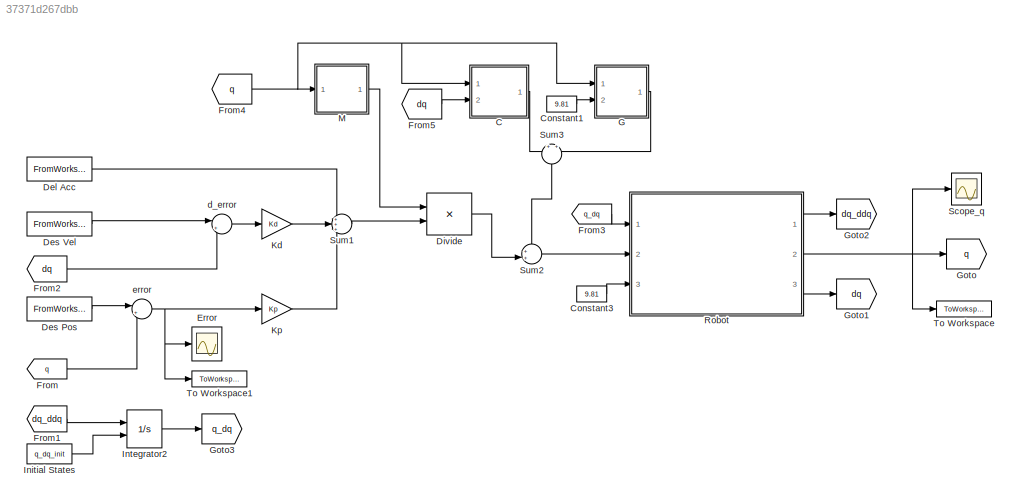
MODEL slx_37371d267dbb
KIND model
CONFIG AbsTol = auto
CONFIG EnableMultiTasking = off
CONFIG FixedStep = auto
CONFIG MaxStep = auto
CONFIG MinStep = auto
CONFIG RelTol = 1e-3
CONFIG SampleTimeConstraint = Unconstrained
CONFIG SolverName = VariableStepAuto
CONFIG StartTime = 0.0
CONFIG StopTime = 10.0
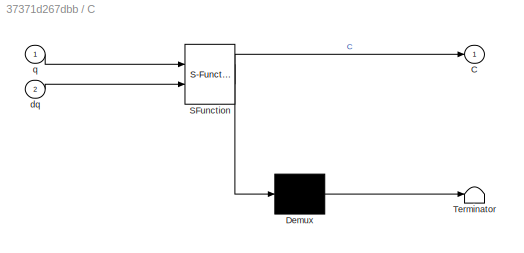
BLOCK [SubSystem] C
  ErrorFcn = Stateflow.Translate.translate
  PermitHierarchicalResolution = ExplicitOnly
  Ports = [2, 1]
  RequestExecContextInheritance = off
  SFBlockType = MATLAB Function
  TreatAsAtomicUnit = on
BLOCK [Demux] C/ Demux 
  Outputs = 1
  Ports = [1, 1]
BLOCK [S-Function] C/ SFunction 
  EnableBusSupport = on
  FunctionName = sf_sfun
  PortCounts = [2 2]
  Ports = [2, 2]
  SFcnIsStateOwnerBlock = off
  SFunctionDeploymentMode = off
  Tag = Stateflow S-Function 3
BLOCK [Terminator] C/ Terminator 
BLOCK [Outport] C/C
BLOCK [Inport] C/dq
  Port = 2
BLOCK [Inport] C/q
BLOCK [Constant] Constant1
  Value = 9.81
BLOCK [Constant] Constant3
  Value = 9.81
BLOCK [FromWorkspace] Del Acc
  VariableName = ddq_des
BLOCK [FromWorkspace] Des Pos
  VariableName = q_des
BLOCK [FromWorkspace] Des Vel
  VariableName = dq_des
BLOCK [Product] Divide
  Inputs = **
  Multiplication = Matrix(*)
  Ports = [2, 1]
BLOCK [Scope] Error
  Floating = off
  NumInputPorts = 1
  Ports = [1]
  ScopeSpecificationString = Simulink.scopes.TimeScopeBlockCfg('CurrentConfiguration', extmgr.ConfigurationSet(extmgr.Configuration('Core','General UI',true,'FigureColor',[1 1 1]),extmgr.Configuration('Core','Source UI',true),extmgr.Configuration('Sources','WiredSimulink',true,'DataLoggingVariableName','ScopeData2'),extmgr.Configuration('Visuals','Time Domain',true,'SerializedDisplays',{struct('MinYLimReal','-0.06746','MaxYLi...<+1790ch>
BLOCK [From] From
  GotoTag = q
BLOCK [From] From1
  GotoTag = dq_ddq
BLOCK [From] From2
  GotoTag = dq
BLOCK [From] From3
  GotoTag = q_dq
BLOCK [From] From4
  GotoTag = q
BLOCK [From] From5
  GotoTag = dq
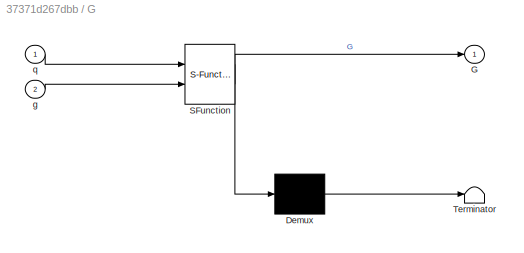
BLOCK [SubSystem] G
  ErrorFcn = Stateflow.Translate.translate
  PermitHierarchicalResolution = ExplicitOnly
  Ports = [2, 1]
  RequestExecContextInheritance = off
  SFBlockType = MATLAB Function
  TreatAsAtomicUnit = on
BLOCK [Demux] G/ Demux 
  Outputs = 1
  Ports = [1, 1]
BLOCK [S-Function] G/ SFunction 
  EnableBusSupport = on
  FunctionName = sf_sfun
  PortCounts = [2 2]
  Ports = [2, 2]
  SFcnIsStateOwnerBlock = off
  SFunctionDeploymentMode = off
  Tag = Stateflow S-Function 4
BLOCK [Terminator] G/ Terminator 
BLOCK [Outport] G/G
BLOCK [Inport] G/g
  Port = 2
BLOCK [Inport] G/q
BLOCK [Goto] Goto
  GotoTag = q
BLOCK [Goto] Goto1
  GotoTag = dq
BLOCK [Goto] Goto2
  GotoTag = dq_ddq
BLOCK [Goto] Goto3
  GotoTag = q_dq
BLOCK [Constant] Initial States
  Value = q_dq_init
BLOCK [Integrator] Integrator2
  InitialConditionSource = external
  Ports = [2, 1]
BLOCK [Gain] Kd
  Gain = Kd
  Multiplication = Matrix(K*u)
BLOCK [Gain] Kp
  Gain = Kp
  Multiplication = Matrix(K*u)
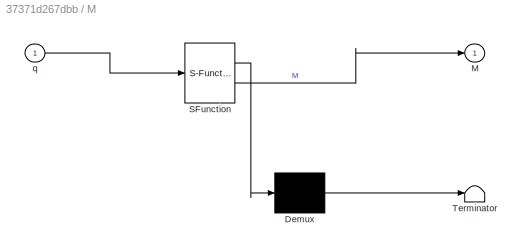
BLOCK [SubSystem] M
  ErrorFcn = Stateflow.Translate.translate
  PermitHierarchicalResolution = ExplicitOnly
  Ports = [1, 1]
  RequestExecContextInheritance = off
  SFBlockType = MATLAB Function
  TreatAsAtomicUnit = on
BLOCK [Demux] M/ Demux 
  Outputs = 1
  Ports = [1, 1]
BLOCK [S-Function] M/ SFunction 
  EnableBusSupport = on
  FunctionName = sf_sfun
  PortCounts = [1 2]
  Ports = [1, 2]
  SFcnIsStateOwnerBlock = off
  SFunctionDeploymentMode = off
  Tag = Stateflow S-Function 1
BLOCK [Terminator] M/ Terminator 
BLOCK [Outport] M/M
BLOCK [Inport] M/q
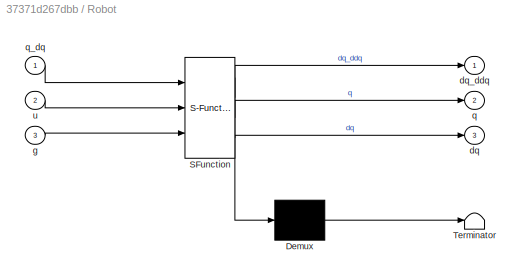
BLOCK [SubSystem] Robot
  ErrorFcn = Stateflow.Translate.translate
  PermitHierarchicalResolution = ExplicitOnly
  Ports = [3, 3]
  RequestExecContextInheritance = off
  SFBlockType = MATLAB Function
  TreatAsAtomicUnit = on
BLOCK [Demux] Robot/ Demux 
  Outputs = 1
  Ports = [1, 1]
BLOCK [S-Function] Robot/ SFunction 
  EnableBusSupport = on
  FunctionName = sf_sfun
  PortCounts = [3 4]
  Ports = [3, 4]
  SFcnIsStateOwnerBlock = off
  SFunctionDeploymentMode = off
  Tag = Stateflow S-Function 5
BLOCK [Terminator] Robot/ Terminator 
BLOCK [Outport] Robot/dq
  Port = 3
BLOCK [Outport] Robot/dq_ddq
BLOCK [Inport] Robot/g
  Port = 3
BLOCK [Outport] Robot/q
  Port = 2
BLOCK [Inport] Robot/q_dq
BLOCK [Inport] Robot/u
  Port = 2
BLOCK [Scope] Scope_q
  Floating = off
  NumInputPorts = 1
  Ports = [1]
  ScopeSpecificationString = Simulink.scopes.TimeScopeBlockCfg('CurrentConfiguration', extmgr.ConfigurationSet(extmgr.Configuration('Core','General UI',true,'FigureColor',[1 1 1]),extmgr.Configuration('Core','Source UI',true),extmgr.Configuration('Sources','WiredSimulink',true,'DataLoggingVariableName','ScopeData1'),extmgr.Configuration('Visuals','Time Domain',true,'SerializedDisplays',{struct('MinYLimReal','-0.02499','MaxYLi...<+1828ch>
BLOCK [Sum] Sum1
  Inputs = +++
  Ports = [3, 1]
BLOCK [Sum] Sum2
  Inputs = ++|
  Ports = [2, 1]
BLOCK [Sum] Sum3
  Inputs = +|+
  NameLocation = left
  Ports = [2, 1]
BLOCK [ToWorkspace] To Workspace
  FixptAsFi = on
  MaxDataPoints = inf
  Ports = [1]
  SampleTime = -1
  SaveFormat = Timeseries
  VariableName = q
BLOCK [ToWorkspace] To Workspace1
  FixptAsFi = on
  MaxDataPoints = inf
  Ports = [1]
  SampleTime = -1
  SaveFormat = Timeseries
  VariableName = error
BLOCK [Sum] d_error
  Inputs = |+-
  Ports = [2, 1]
BLOCK [Sum] error
  Inputs = |+-
  Ports = [2, 1]
LINE C:1 -> Sum3:1
LINE Constant1:1 -> G:2
LINE Constant3:1 -> Robot:3
LINE Del Acc:1 -> Sum1:1
LINE Des Pos:1 -> error:1
LINE Des Vel:1 -> d_error:1
LINE Divide:1 -> Sum2:2
LINE From1:1 -> Integrator2:1
LINE From2:1 -> d_error:2
LINE From3:1 -> Robot:1
NET From4:1 -> C:1, G:1, M:1
LINE From5:1 -> C:2
LINE From:1 -> error:2
LINE G:1 -> Sum3:2
LINE Initial States:1 -> Integrator2:2
LINE Integrator2:1 -> Goto3:1
LINE Kd:1 -> Sum1:2
LINE Kp:1 -> Sum1:3
LINE M:1 -> Divide:1
LINE Robot:1 -> Goto2:1
NET Robot:2 -> Goto:1, Scope_q:1, To Workspace:1
LINE Robot:3 -> Goto1:1
LINE Sum1:1 -> Divide:2
LINE Sum2:1 -> Robot:2
LINE Sum3:1 -> Sum2:1
LINE d_error:1 -> Kd:1
NET error:1 -> Error:1, Kp:1, To Workspace1:1
note: NET lines group one-source signal fan-out (src -> all destinations, sorted); 1:1 wires keep LINE
CHART M states=1 transitions=1
  STATE_LABEL 'eML_blk_kernel()'
  STATE_LABEL 'SCRIPT:\nfunction M = M_fun(q)\n%M_fun\n%    M = M_fun(Q1,Q2,Q3,Q4,Q5,Q6,Q7)\n\n%    This function was generated by the Symbolic Math Toolbox version 9.0.\n%    15-Apr-2022 02:51:43\n\nq1 = q(1);\nq2 = q(2);\nq3 = q(3);\nq4 = q(4);\nq5 = q(5);\nq6 = q(6);\nq7 = q(7);\n\nt2 = cos(q1);\nt3 = cos(q2);\nt4 = cos(q3);\nt5 = cos(q4);\nt6 = cos(q5);\nt7 = cos(q6);\nt8 = cos(q7);\nt9 = sin(q1);\nt10 = sin(q2);\nt11 = sin(q3);\nt12...<+3608ch>'
CHART C states=1 transitions=1
  STATE_LABEL 'eML_blk_kernel()'
  STATE_LABEL 'SCRIPT:\nfunction C = C_fun(q,dq)\n%C_fun\n%    C = C_fun(Q1,Q2,Q3,Q4,Q5,Q6,Q7,DQ1,DQ2,DQ3,DQ4,DQ5,DQ6,DQ7)\n\n%    This function was generated by the Symbolic Math Toolbox version 9.0.\n%    15-Apr-2022 03:00:29\n\nq1 = q(1);\nq2 = q(2);\nq3 = q(3);\nq4 = q(4);\nq5 = q(5);\nq6 = q(6);\nq7 = q(7);\n\ndq1 = dq(1);\ndq2 = dq(2);\ndq3 = dq(3);\ndq4 = dq(4);\ndq5 = dq(5);\ndq6 = dq(6);\ndq7 = dq(7);\n\nt2 = cos(q1);\nt3 = cos...<+3608ch>'
CHART G states=1 transitions=1
  STATE_LABEL 'eML_blk_kernel()'
  STATE_LABEL 'SCRIPT:\nfunction G = G_fun(q,g)\n%G_fun\n%    G = G_fun(Q1,Q2,Q3,Q4,Q5,Q6,Q7,g)\n\n%    This function was generated by the Symbolic Math Toolbox version 9.0.\n%    15-Apr-2022 03:01:31\n\nq1 = q(1);\nq2 = q(2);\nq3 = q(3);\nq4 = q(4);\nq5 = q(5);\nq6 = q(6);\nq7 = q(7);\n\n\n\nt2 = cos(q2);\nt3 = cos(q3);\nt4 = cos(q4);\nt5 = cos(q5);\nt6 = cos(q6);\nt7 = cos(q7);\nt8 = sin(q2);\nt9 = sin(q3);\nt10 = sin(q4);\nt11 = sin(q5...<+3608ch>'
CHART Robot states=1 transitions=1
  STATE_LABEL 'eML_blk_kernel()'
  STATE_LABEL 'SCRIPT:\nfunction [dq_ddq,q,dq] = Robot(q_dq,u,g)\n    q = q_dq(1:length(q_dq)/2);\n    dq = q_dq(length(q_dq)/2+1:length(q_dq));\n    g_num = g;\n\n\n    M = M_fun(q);\n    C = C_fun(q,dq);\n    G = G_fun(q,g_num);\n\n    ddq = M\\(u - C - G);\n    \n    dq_ddq = [dq;ddq];\n\nend\n'
CHART  states=0 transitions=0
CHART  states=0 transitions=0
CHART  states=0 transitions=0
CHART  states=0 transitions=0
